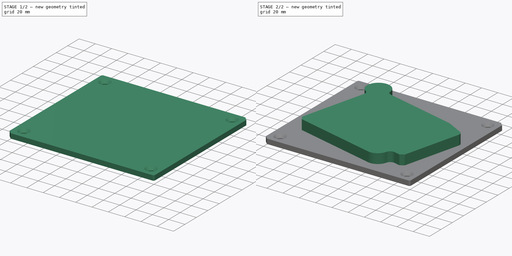
[diagram: build sequence overview — one tinted view per stage of 2, left to right]
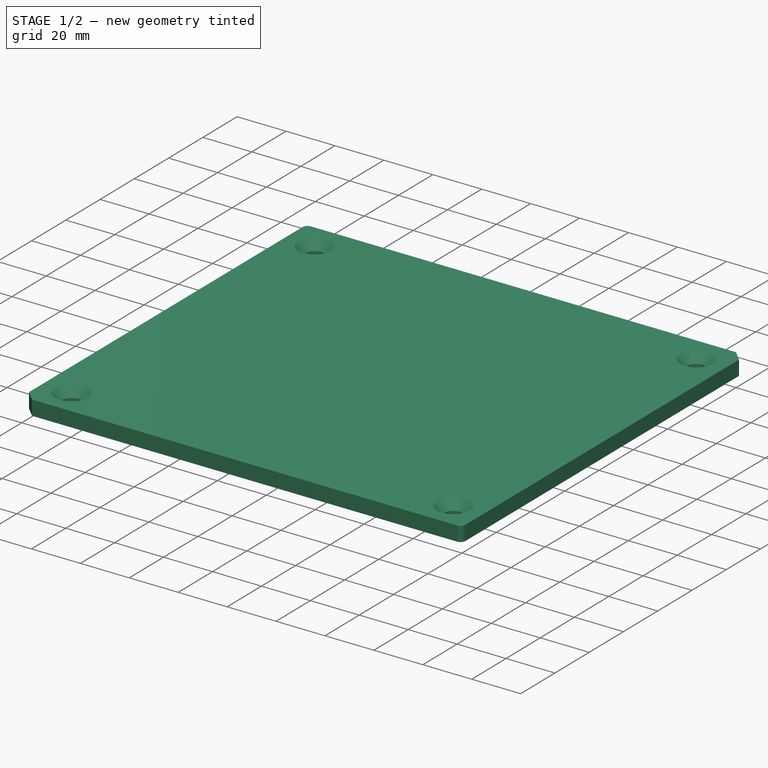
[diagram: stage 1 of 2 — iso view after this stage's code; geometry added in this stage tinted green]
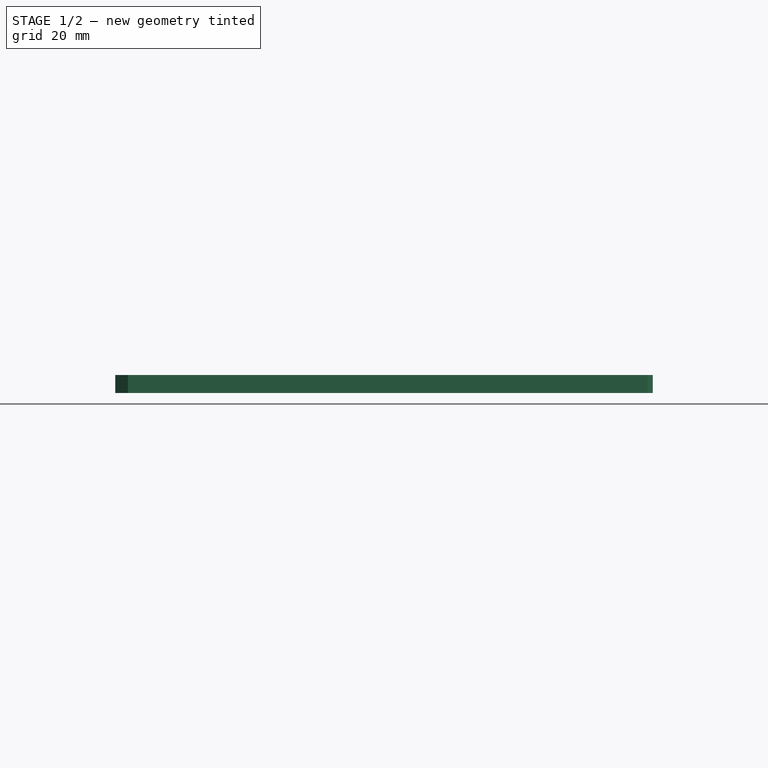
[diagram: stage 1 of 2 — front view after this stage's code; geometry added in this stage tinted green]
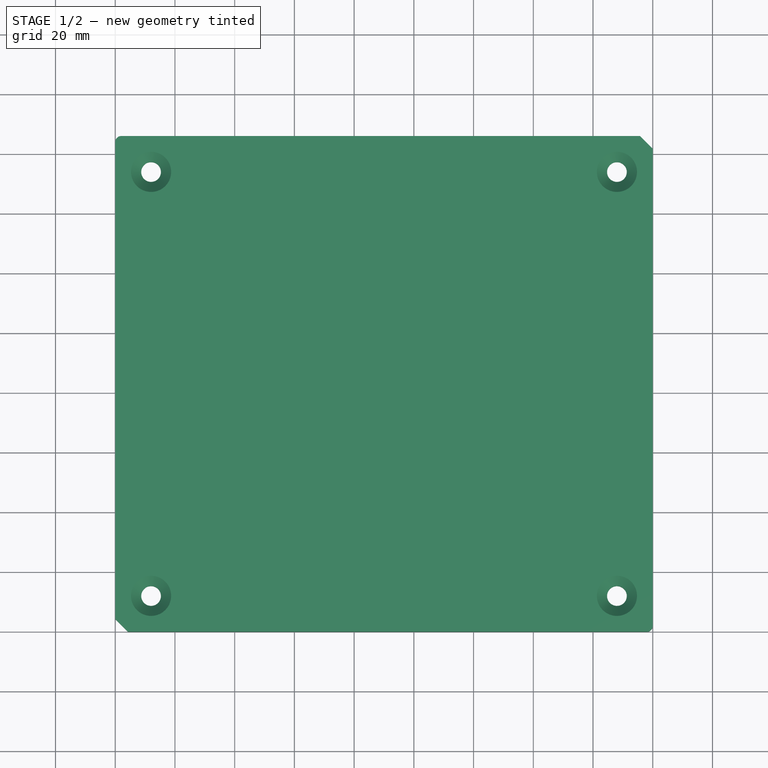
[diagram: stage 1 of 2 — top view after this stage's code; geometry added in this stage tinted green]
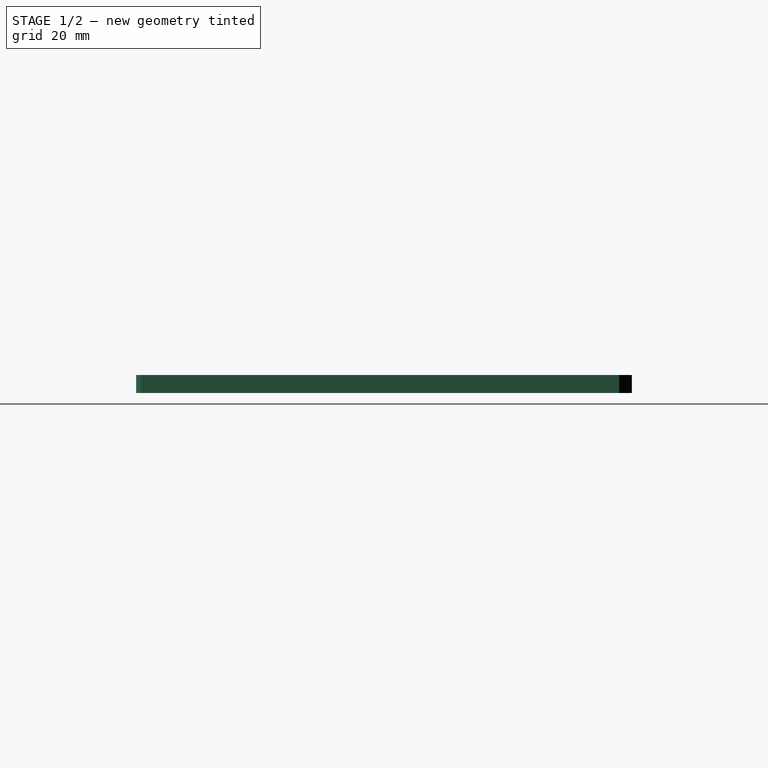
[diagram: stage 1 of 2 — right view after this stage's code; geometry added in this stage tinted green]
FCSTD DOCUMENT  (FreeCAD 0.20R24438 (Git))
Label: Final
License: All rights reserved
LicenseURL: http://en.wikipedia.org/wiki/All_rights_reserved
objects: Sketcher::SketchObject×5, PartDesign::Pad×2, Spreadsheet::Sheet×1, PartDesign::Hole×1, PartDesign::Body×1
note: 12 computed .brp shape members not serialized (recipe doc carries the construction recipe); baked Part::Feature solids carry a one-line shape summary decoded from their .brp

FEATURE [Spreadsheet::Sheet] Spreadsheet001  label="Parameters"
  cells = A1=D_1; B1(D_1)=27; A2=KAT; B2(KAT)=14; A3=KAT_2; B3(KAT_2)=28; A4=KPX; B4(KPX)=69; A5=KPY; B5(KPY)=45; A6=D_2; B6(D_2)=39; A7=RKK_1; B7(RKK_1)=6; A8=KOX; B8(KOX)=53; A9=KOY; B9(KOY)=53; A10=WX_1; B10(WX_1)=106; A11=WX_2; B11(WX_2)=136; A12=WY_1; B12(WY_1)=106; A13=RW_1; B13(RW_1)=6; A14=RW_2; B14(RW_2)=14; A15=RW_3; B15(RW_3)=27; A16=RW_4; B16(RW_4)=6; A17=RW_5; B17(RW_5)=6; A18=RW_6; B18(RW_6)=13; A19=FW_1; B19(FW_1)=6; A20=FW_2; B20(FW_2)=5.5; A21=KX_1; B21(KX_1)=12; A22=KX_2; B22(KX_2)=17; A23=KX_3; B23(KX_3)=68; A24=KX_4; B24(KX_4)=139; A25=KX_5; B25(KX_5)=168; A26=KX_6; B26(KX_6)=180; A27=KY_1; B27(KY_1)=12; A28=KY_2; B28(KY_2)=38; A29=KY_3; B29(KY_3)=109; A30=KY_4; B30(KY_4)=146; A31=KY_5; B31(KY_5)=154; A32=KY_6; B32(KY_6)=166; A33=FK_1; B33(FK_1)=2; A34=RK_1; B34(RK_1)=2; A35=H_1; B35(H_1)=12; A36=H_2; B36(H_2)=18; A37=KH_1; B37(KH_1)=10; A38=KH_2; B38(KH_2)=6; A39=OTWX_1; B39(OTWX_1)=9; A40=OTWY_1; B40(OTWY_1)=7; A41=OTWY_2; B41(OTWY_2)=14; A42=GOTW_1; B42(GOTW_1)=14; A43=GOTW_2; B43(GOTW_2)=10; A44=WY_1_1; B44(WY_1_1)=19.0787840283389
FEATURE [Sketcher::SketchObject] Sketch
  FullyConstrained = true
  MapMode = 5
  Support = -> [XY_Plane]
  expr: Constraints[24] = <<Parameters>>.FW_1
  expr: Constraints[16] = <<Parameters>>.RK_1
  expr: Constraints[10] = <<Parameters>>.KY_6
  expr: Constraints[22] = 180 - 45
  expr: Constraints[9] = <<Parameters>>.KX_6
  sketch-geometry (12):
    g0: LineSegment StartX=0 StartY=0 StartZ=0 EndX=180 EndY=0 EndZ=0
    g1: LineSegment StartX=180 StartY=0 StartZ=0 EndX=180 EndY=166 EndZ=0
    g2: LineSegment StartX=180 StartY=166 StartZ=0 EndX=0 EndY=166 EndZ=0
    g3: LineSegment StartX=0 StartY=166 StartZ=0 EndX=0 EndY=0 EndZ=0
    g4: ArcOfCircle CenterX=2 CenterY=164 CenterZ=0 NormalX=0 NormalY=0 NormalZ=1 AngleXU=0 Radius=2 StartAngle=1.5708 EndAngle=3.14159
    g5: ArcOfCircle CenterX=178 CenterY=2 CenterZ=0 NormalX=0 NormalY=0 NormalZ=1 AngleXU=0 Radius=2 StartAngle=4.71239 EndAngle=6.28319
    g6: LineSegment StartX=0 StartY=4.24264 StartZ=0 EndX=4.24264 EndY=0 EndZ=0
    g7: LineSegment StartX=175.757 StartY=166 StartZ=0 EndX=180 EndY=161.757 EndZ=0
    g8: LineSegment StartX=0 StartY=164 StartZ=0 EndX=0 EndY=4.24264 EndZ=0
    g9: LineSegment StartX=4.24264 StartY=0 StartZ=0 EndX=178 EndY=0 EndZ=0
    g10: LineSegment StartX=180 StartY=2 StartZ=0 EndX=180 EndY=161.757 EndZ=0
    g11: LineSegment StartX=175.757 StartY=166 StartZ=0 EndX=2 EndY=166 EndZ=0
  constraints (35):
    c: Coincident(g0,g1)
    c: Coincident(g1,g2)
    c: Coincident(g2,g3)
    c: Coincident(g3,g0)
    c: Horizontal(g0)
    c: Horizontal(g2)
    c: Vertical(g1)
    c: Vertical(g3)
    c: Coincident(g0,g-1)
    c: DistanceX(g0,g0) = 180
    c: DistanceY(g3,g3) = 166
    c: Equal(g4,g5)
    c: Tangent(g4,g2) = -1.5708
    c: Tangent(g4,g3) = -1.5708
    c: Tangent(g5,g0) = -1.5708
    c: Tangent(g5,g1) = -1.5708
    c: Radius(g5) = 2
    c: PointOnObject(g6,g3)
    c: PointOnObject(g6,g0)
    c: PointOnObject(g7,g2)
    c: PointOnObject(g7,g1)
    c: Equal(g6,g7)
    c: Angle(g6,g3) = 2.35619
    c: Angle(g7,g1) = 2.35619
    c: Distance(g7) = 6
    c: Coincident(g8,g4)
    c: Coincident(g8,g6)
    c: Coincident(g9,g6)
    c: Coincident(g9,g5)
    c: Coincident(g10,g5)
    c: Coincident(g10,g7)
    c: Coincident(g11,g7)
    c: Coincident(g11,g4)
    c: Horizontal(g11)
    c: Tangent(g11,g4)
FEATURE [PartDesign::Pad] Pad
  Direction = (1,1,1)
  Length = 6
  Length2 = 100
  Profile = -> Sketch
  Type = 0
  expr: Length = <<Parameters>>.H_2 - <<Parameters>>.H_1
FEATURE [Sketcher::SketchObject] Sketch001
  FullyConstrained = true
  MapMode = 5
  Placement = pos=(0,0,6) rot=(0,0,1;0rad)
  Support = -> [Pad]
  expr: Constraints[35] = <<Parameters>>.KY_4
  expr: Constraints[28] = <<Parameters>>.KY_5 - <<Parameters>>.KY_1
  expr: Constraints[25] = 6.6
  expr: Constraints[34] = <<Parameters>>.KX_3
  expr: Constraints[29] = <<Parameters>>.KX_5 - <<Parameters>>.KX_1
  expr: Constraints[26] = <<Parameters>>.KY_1
  expr: Constraints[27] = <<Parameters>>.KX_1
  sketch-geometry (14):
    g0: LineSegment StartX=0 StartY=0 StartZ=0 EndX=12 EndY=0 EndZ=0
    g1: LineSegment StartX=12 StartY=0 StartZ=0 EndX=12 EndY=12 EndZ=0
    g2: LineSegment StartX=12 StartY=12 StartZ=0 EndX=0 EndY=12 EndZ=0
    g3: LineSegment StartX=0 StartY=12 StartZ=0 EndX=0 EndY=0 EndZ=0
    g4: LineSegment StartX=12 StartY=12 StartZ=0 EndX=168 EndY=12 EndZ=0
    g5: LineSegment StartX=168 StartY=12 StartZ=0 EndX=168 EndY=154 EndZ=0
    g6: LineSegment StartX=168 StartY=154 StartZ=0 EndX=12 EndY=154 EndZ=0
    g7: LineSegment StartX=12 StartY=154 StartZ=0 EndX=12 EndY=12 EndZ=0
    g8: Circle CenterX=12 CenterY=154 CenterZ=0 NormalX=0 NormalY=0 NormalZ=1 AngleXU=0 Radius=3.3
    g9: Circle CenterX=168 CenterY=154 CenterZ=0 NormalX=0 NormalY=0 NormalZ=1 AngleXU=0 Radius=3.3
    g10: Circle CenterX=168 CenterY=12 CenterZ=0 NormalX=0 NormalY=0 NormalZ=1 AngleXU=0 Radius=3.3
    g11: Circle CenterX=12 CenterY=12 CenterZ=0 NormalX=0 NormalY=0 NormalZ=1 AngleXU=0 Radius=3.3
    g12: LineSegment StartX=0 StartY=0 StartZ=0 EndX=68 EndY=0 EndZ=0
    g13: LineSegment StartX=0 StartY=146 StartZ=0 EndX=0 EndY=0 EndZ=0
  constraints (36):
    c: Coincident(g0,g1)
    c: Coincident(g1,g2)
    c: Coincident(g2,g3)
    c: Coincident(g3,g0)
    c: Horizontal(g0)
    c: Horizontal(g2)
    c: Vertical(g1)
    c: Vertical(g3)
    c: Coincident(g0,g-1)
    c: Coincident(g4,g5)
    c: Coincident(g5,g6)
    c: Coincident(g6,g7)
    c: Coincident(g7,g4)
    c: Horizontal(g4)
    c: Horizontal(g6)
    c: Vertical(g5)
    c: Vertical(g7)
    c: Coincident(g4,g1)
    c: Coincident(g8,g6)
    c: Coincident(g9,g5)
    c: Coincident(g10,g4)
    c: Coincident(g11,g1)
    c: Equal(g8,g9)
    c: Equal(g9,g10)
    c: Equal(g10,g11)
    c: Diameter(g9) = 6.6
    c: DistanceY(g3,g3) = 12
    c: DistanceX(g0,g0) = 12
    c: DistanceY(g7,g7) = 142
    c: DistanceX(g4,g4) = 156
    c: Coincident(g13,g12)
    c: Horizontal(g12)
    c: Vertical(g13)
    c: Coincident(g12,g-1)
    c: DistanceX(g12,g12) = 68
    c: DistanceY(g13,g13) = 146
FEATURE [PartDesign::Hole] Hole
  BaseFeature = -> Pad
  CustomThreadClearance = 0
  Depth = 25
  DepthType = 0
  Diameter = 6.6
  DrillForDepth = false
  DrillPoint = 1
  DrillPointAngle = 90
  HoleCutCountersinkAngle = 90
  HoleCutCustomValues = false
  HoleCutDepth = 0
  HoleCutDiameter = 13.44
  HoleCutType = 2
  ModelThread = false
  Profile = -> Sketch001
  Tapered = false
  TaperedAngle = 90
  ThreadClass = 0
  ThreadDepth = 25
  ThreadDepthType = 0
  ThreadDirection = 0
  ThreadFit = 0
  ThreadSize = 0
  ThreadType = 0
  Threaded = false
  UseCustomThreadClearance = false
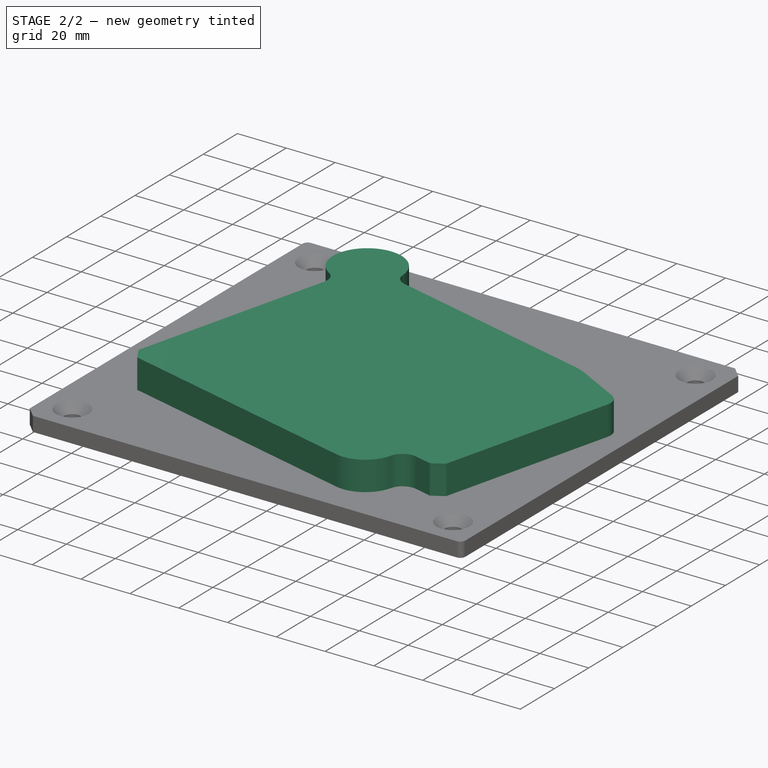
[diagram: stage 2 of 2 — iso view after this stage's code; geometry added in this stage tinted green]
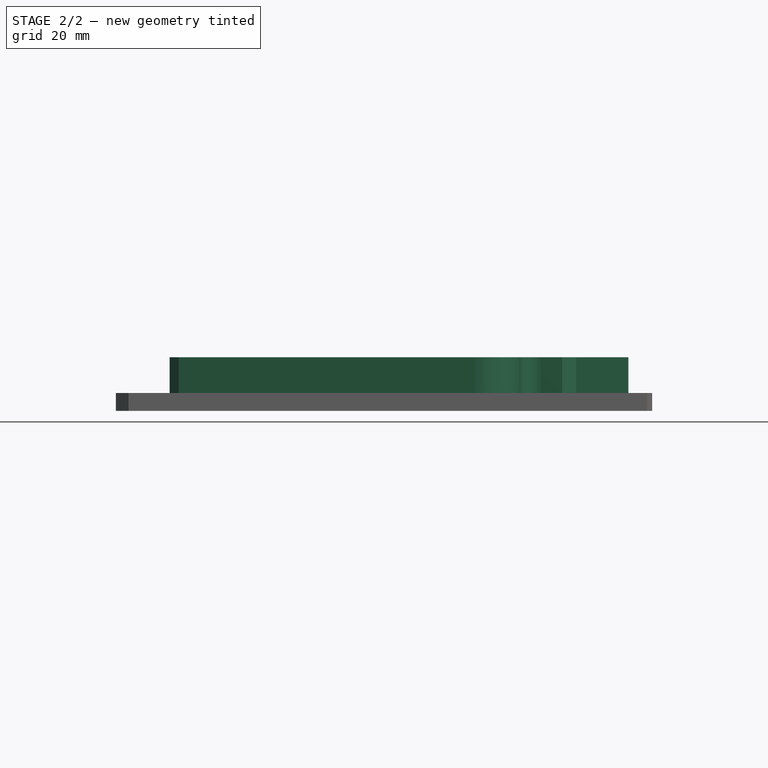
[diagram: stage 2 of 2 — front view after this stage's code; geometry added in this stage tinted green]
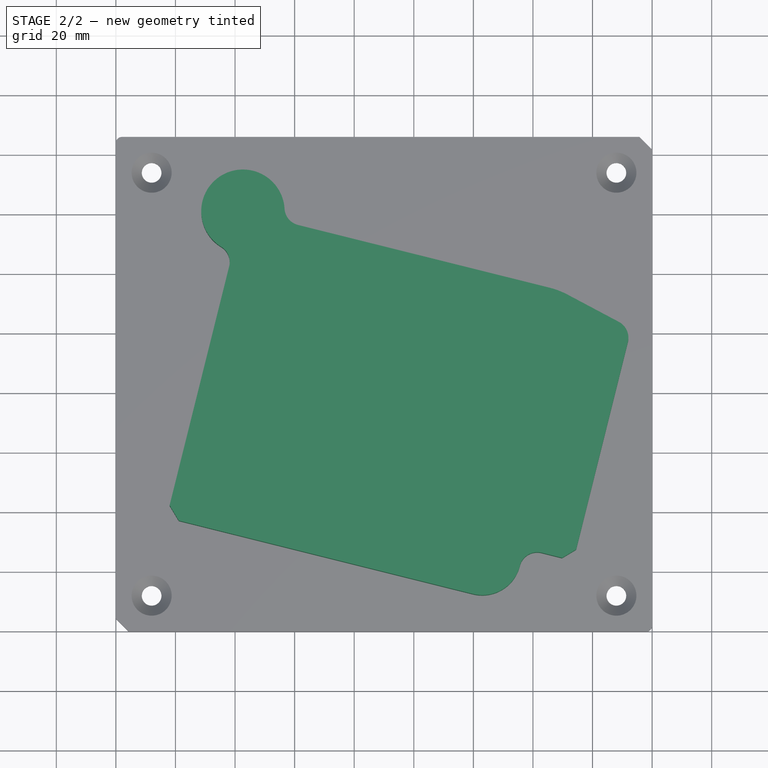
[diagram: stage 2 of 2 — top view after this stage's code; geometry added in this stage tinted green]
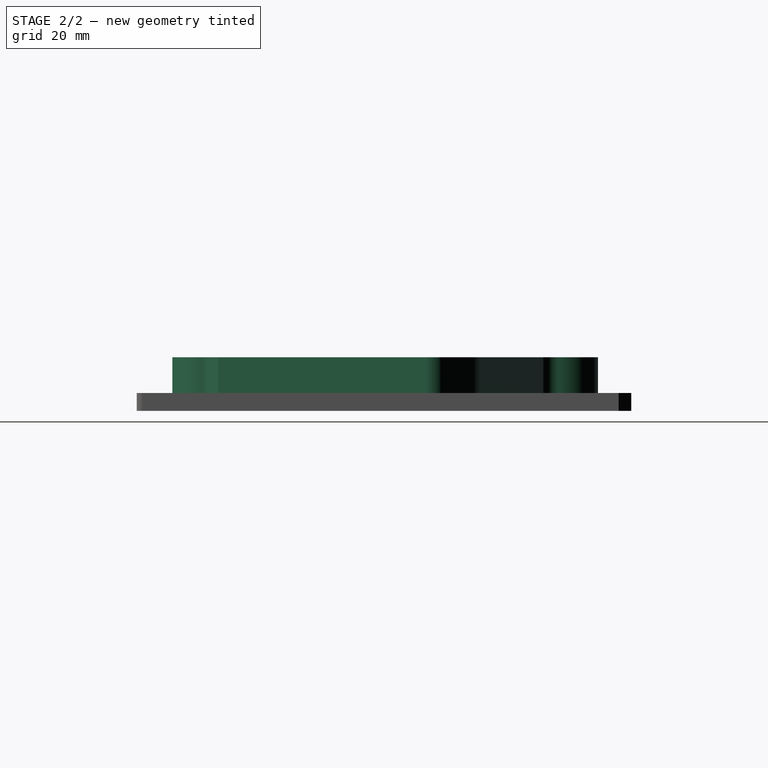
[diagram: stage 2 of 2 — right view after this stage's code; geometry added in this stage tinted green]
FEATURE [Sketcher::SketchObject] Sketch002
  ExternalGeometry = -> [Hole]
  FullyConstrained = true
  MapMode = 5
  Placement = pos=(0,0,6) rot=(0,0,1;0rad)
  Support = -> [Hole]
  expr: Constraints[74] = <<Parameters>>.FW_2
  expr: Constraints[38] = <<Parameters>>.RW_1
  expr: Constraints[32] = <<Parameters>>.KAT
  expr: Constraints[26] = <<Parameters>>.WY_1
  expr: Constraints[27] = <<Parameters>>.WX_2
  expr: Constraints[65] = <<Parameters>>.RW_5
  expr: Constraints[51] = <<Parameters>>.RW_3
  expr: Constraints[28] = <<Parameters>>.WX_1
  expr: Constraints[25] = <<Parameters>>.KX_2
  expr: Constraints[66] = <<Parameters>>.RW_6
  expr: Constraints[58] = <<Parameters>>.KAT
  expr: Constraints[52] = <<Parameters>>.RW_4
  expr: Constraints[43] = <<Parameters>>.FW_1
  expr: Constraints[36] = <<Parameters>>.RW_2
  expr: Constraints[24] = <<Parameters>>.KY_2
  sketch-geometry (29):
    g0: LineSegment StartX=0 StartY=0 StartZ=0 EndX=17 EndY=0 EndZ=0
    g1: LineSegment StartX=17 StartY=0 StartZ=0 EndX=17 EndY=38 EndZ=0
    g2: LineSegment StartX=17 StartY=38 StartZ=0 EndX=0 EndY=38 EndZ=0
    g3: LineSegment StartX=0 StartY=38 StartZ=0 EndX=0 EndY=0 EndZ=0
    g4: LineSegment StartX=17 StartY=38 StartZ=0 EndX=42.6437 EndY=140.851 EndZ=0
    g5: LineSegment StartX=42.6437 StartY=140.851 StartZ=0 EndX=145.495 EndY=115.208 EndZ=0
    g6: LineSegment StartX=145.495 StartY=115.208 StartZ=0 EndX=119.851 EndY=12.3563 EndZ=0
    g7: LineSegment StartX=119.851 StartY=12.3563 StartZ=0 EndX=17 EndY=38 EndZ=0
    g8: LineSegment StartX=119.851 StartY=12.3563 StartZ=0 EndX=148.96 EndY=5.09862 EndZ=0
    g9: LineSegment StartX=148.96 StartY=5.09862 StartZ=0 EndX=174.604 EndY=107.95 EndZ=0
    g10: LineSegment StartX=174.604 StartY=107.95 StartZ=0 EndX=145.495 EndY=115.208 EndZ=0
    g11: LineSegment StartX=17 StartY=38 StartZ=0 EndX=17 EndY=166 EndZ=0
    g12: ArcOfCircle CenterX=42.6437 CenterY=140.851 CenterZ=0 NormalX=0 NormalY=0 NormalZ=1 AngleXU=0 Radius=14 StartAngle=0.0603466 EndAngle=4.16335
    g13: ArcOfCircle CenterX=122.996 CenterY=24.9701 CenterZ=0 NormalX=0 NormalY=0 NormalZ=1 AngleXU=0 Radius=13 StartAngle=4.46804 EndAngle=6.03884
    g14: ArcOfCircle CenterX=141.432 CenterY=20.3736 CenterZ=0 NormalX=0 NormalY=0 NormalZ=1 AngleXU=0 Radius=6 StartAngle=1.32645 EndAngle=2.89725
    g15: ArcOfCircle CenterX=138.963 CenterY=89.0096 CenterZ=0 NormalX=0 NormalY=0 NormalZ=1 AngleXU=0 Radius=27 StartAngle=1.0821 EndAngle=1.32645
    g16: ArcOfCircle CenterX=166.039 CenterY=98.3974 CenterZ=0 NormalX=0 NormalY=0 NormalZ=1 AngleXU=0 Radius=6 StartAngle=6.03884 EndAngle=7.36529
    g17: LineSegment StartX=18.0264 StartY=42.1166 StartZ=0 EndX=21.1166 EndY=36.9736 EndZ=0
    g18: ArcOfCircle CenterX=32.2064 CenterY=123.791 CenterZ=0 NormalX=0 NormalY=0 NormalZ=1 AngleXU=0 Radius=6 StartAngle=6.03884 EndAngle=7.30494
    g19: ArcOfCircle CenterX=62.6073 CenterY=142.058 CenterZ=0 NormalX=0 NormalY=0 NormalZ=1 AngleXU=0 Radius=6 StartAngle=3.20194 EndAngle=4.46804
    g20: LineSegment StartX=38.0281 StartY=122.339 StartZ=0 EndX=18.0264 EndY=42.1166 EndZ=0
    g21: LineSegment StartX=119.851 StartY=12.3563 StartZ=0 EndX=21.1166 EndY=36.9736 EndZ=0
    g22: LineSegment StartX=145.495 StartY=115.208 StartZ=0 EndX=61.1558 EndY=136.236 EndZ=0
    g23: LineSegment StartX=151.639 StartY=112.849 StartZ=0 EndX=168.855 EndY=103.695 EndZ=0
    g24: LineSegment StartX=122.996 StartY=24.9701 StartZ=0 EndX=141.432 EndY=20.3736 EndZ=0
    g25: LineSegment StartX=149.783 StartY=24.4751 StartZ=0 EndX=154.498 EndY=27.3078 EndZ=0
    g26: LineSegment StartX=149.783 StartY=24.4751 StartZ=0 EndX=142.883 EndY=26.1954 EndZ=0
    g27: LineSegment StartX=149.783 StartY=24.4751 StartZ=0 EndX=153.557 EndY=23.5342 EndZ=0
    g28: LineSegment StartX=171.86 StartY=96.9459 StartZ=0 EndX=154.498 EndY=27.3078 EndZ=0
  constraints (80):
    c: Coincident(g0,g1)
    c: Coincident(g1,g2)
    c: Coincident(g2,g3)
    c: Coincident(g3,g0)
    c: Horizontal(g0)
    c: Horizontal(g2)
    c: Vertical(g1)
    c: Vertical(g3)
    c: Coincident(g0,g-1)
    c: Coincident(g4,g1)
    c: Coincident(g5,g4)
    c: Coincident(g6,g5)
    c: Coincident(g7,g6)
    c: Coincident(g7,g1)
    c: Coincident(g8,g6)
    c: Coincident(g9,g8)
    c: Coincident(g10,g9)
    c: Coincident(g10,g5)
    c: Perpendicular(g5,g6)
    c: Perpendicular(g6,g10)
    c: Perpendicular(g10,g9)
    c: Perpendicular(g9,g8)
    c: Perpendicular(g6,g7)
    c: Perpendicular(g7,g4)
    c: DistanceY(g3,g3) = 38
    c: DistanceX(g0,g0) = 17
    c: Distance(g4) = 106
    c: Distance(g8,g1) = 136
    c: Distance(g4,g5) = 106
    c: Coincident(g11,g1)
    c: PointOnObject(g11,g-3)
    c: Vertical(g11)
    c: Angle(g4,g11) = 0.244346
    c: Coincident(g12,g4)
    c: PointOnObject(g17,g4)
    c: PointOnObject(g17,g7)
    c: Radius(g12) = 14
    c: Equal(g19,g18)
    c: Radius(g18) = 6
    c: Tangent(g18,g4) = -1.5708
    c: Tangent(g19,g12) = 1.5708
    c: Tangent(g19,g5) = -1.5708
    c: Tangent(g12,g18) = 1.5708
    c: Distance(g17) = 6
    c: Angle(g17,g4) = 2.35619
    c: Coincident(g20,g18)
    c: Coincident(g20,g17)
    c: Coincident(g21,g6)
    c: Coincident(g21,g17)
    c: Coincident(g22,g5)
    c: Coincident(g22,g19)
    c: Radius(g15) = 27
    c: Radius(g16) = 6
    c: Tangent(g15,g22)
    c: Coincident(g15,g5)
    c: Tangent(g16,g9) = -1.5708
    c: Coincident(g23,g15)
    c: Coincident(g23,g16)
    c: Angle(g23,g10) = 0.244346
    c: Tangent(g23,g15)
    c: Tangent(g16,g23)
    c: Coincident(g24,g13)
    c: Coincident(g24,g14)
    c: Parallel(g24,g21)
    c: PointOnObject(g13,g6)
    c: Radius(g14) = 6
    c: Radius(g13) = 13
    c: Coincident(g13,g6)
    c: PointOnObject(g25,g9)
    c: Coincident(g26,g25)
    c: Coincident(g27,g25)
    c: PointOnObject(g27,g9)
    c: Parallel(g27,g26)
    c: Parallel(g26,g8)
    c: Distance(g25) = 5.5
    c: Angle(g9,g25) = 2.35619
    c: Tangent(g14,g26) = -1.5708
    c: Tangent(g13,g14) = 1.5708
    c: Coincident(g28,g16)
    c: Coincident(g28,g25)
FEATURE [PartDesign::Pad] Pad001
  BaseFeature = -> Hole
  Direction = (1,1,1)
  Length = 12
  Length2 = 100
  Profile = -> Sketch002
  Type = 0
  expr: Length = <<Parameters>>.H_1
FEATURE [Sketcher::SketchObject] Sketch003
  FullyConstrained = true
  MapMode = 5
  Placement = pos=(0,0,18) rot=(0,0,1;0rad)
  Support = -> [Pad001]
FEATURE [Sketcher::SketchObject] Sketch004
  FullyConstrained = false
  MapMode = 5
  Placement = pos=(0,0,6) rot=(0,0,1;0rad)
  Support = -> [Pad001]
  expr: Constraints[26] = <<Parameters>>.OTWY_1
  expr: Constraints[25] = <<Parameters>>.OTWX_1
  sketch-geometry (11):
    g0: LineSegment StartX=0 StartY=0 StartZ=0 EndX=101.159 EndY=0 EndZ=0
    g1: LineSegment StartX=101.159 StartY=0 StartZ=0 EndX=101.159 EndY=142.54 EndZ=0
    g2: LineSegment StartX=101.159 StartY=142.54 StartZ=0 EndX=0 EndY=142.54 EndZ=0
    g3: LineSegment StartX=0 StartY=142.54 StartZ=0 EndX=0 EndY=0 EndZ=0
    g4: LineSegment StartX=101.159 StartY=142.54 StartZ=0 EndX=103.139 EndY=149.254 EndZ=0
    g5: LineSegment StartX=103.139 StartY=149.254 StartZ=0 EndX=111.772 EndY=146.707 EndZ=0
    g6: LineSegment StartX=111.772 StartY=146.707 StartZ=0 EndX=120.404 EndY=144.161 EndZ=0
    g7: LineSegment StartX=120.404 StartY=144.161 StartZ=0 EndX=118.423 EndY=137.447 EndZ=0
    g8: LineSegment StartX=118.423 StartY=137.447 StartZ=0 EndX=109.791 EndY=139.993 EndZ=0
    g9: LineSegment StartX=109.791 StartY=139.993 StartZ=0 EndX=101.159 EndY=142.54 EndZ=0
    g10: LineSegment StartX=111.772 StartY=146.707 StartZ=0 EndX=109.791 EndY=139.993 EndZ=0
  constraints (27):
    c: Coincident(g0,g1)
    c: Coincident(g1,g2)
    c: Coincident(g2,g3)
    c: Coincident(g3,g0)
    c: Horizontal(g0)
    c: Horizontal(g2)
    c: Vertical(g1)
    c: Vertical(g3)
    c: Coincident(g0,g-1)
    c: Coincident(g4,g1)
    c: Coincident(g5,g4)
    c: Coincident(g6,g5)
    c: Coincident(g7,g6)
    c: Coincident(g8,g7)
    c: Coincident(g9,g8)
    c: Coincident(g9,g1)
    c: Coincident(g10,g5)
    c: Coincident(g10,g8)
    c: Perpendicular(g10,g9)
    c: Perpendicular(g7,g8)
    c: Perpendicular(g7,g6)
    c: Perpendicular(g4,g5)
    c: Perpendicular(g10,g6)
    c: Perpendicular(g5,g10)
    c: Equal(g6,g5)
    c: Distance(g5) = 9
    c: Distance(g7) = 7
FEATURE [PartDesign::Body] Body
  Group = -> [Sketch,Pad,Sketch001,Hole,Sketch002,Pad001,Sketch003,Sketch004]
  Origin = -> Origin
  Tip = -> Pad001
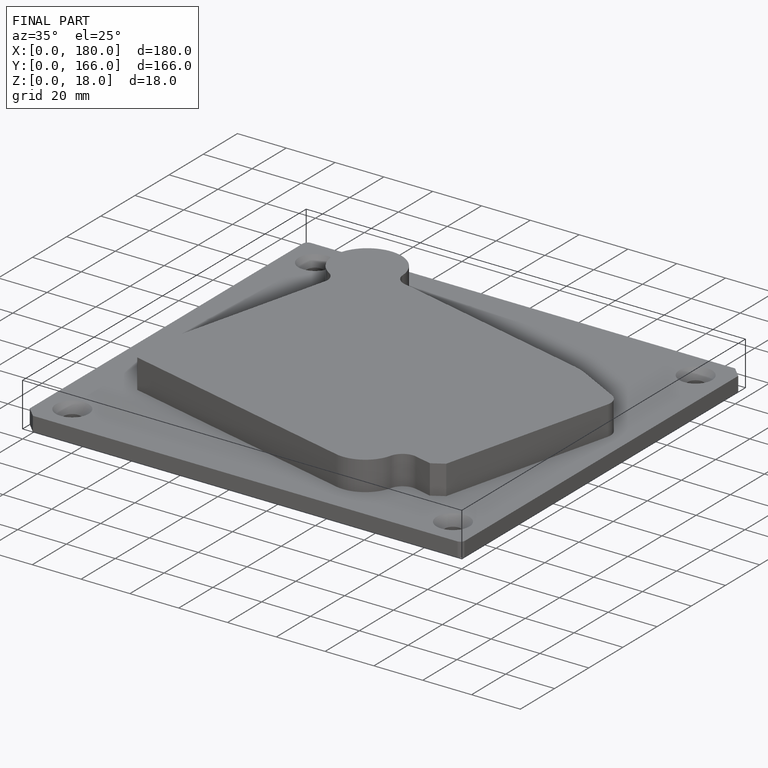
[diagram: finished part — iso view with bounding-box wireframe]
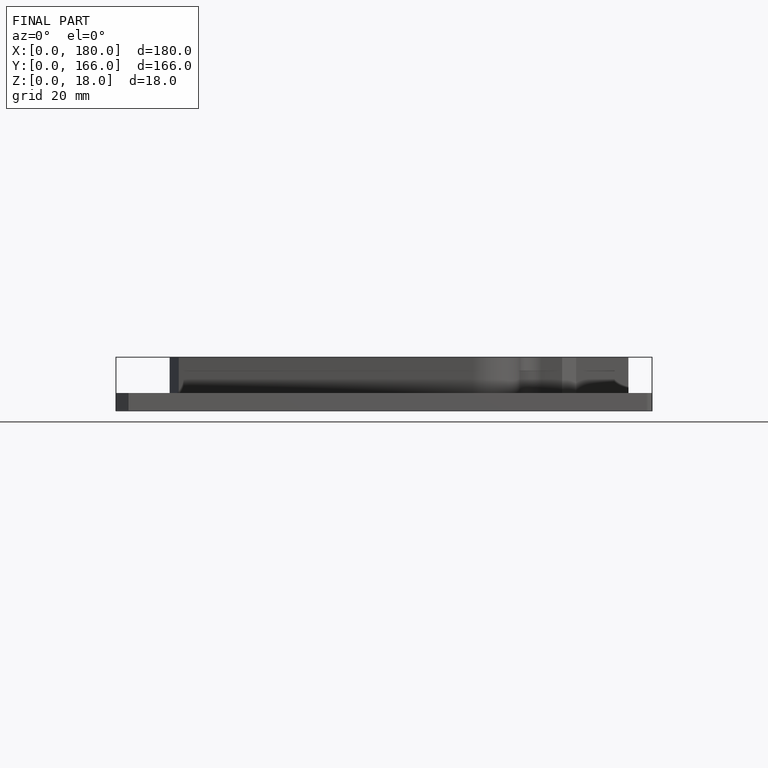
[diagram: finished part — front view with bounding-box wireframe]
